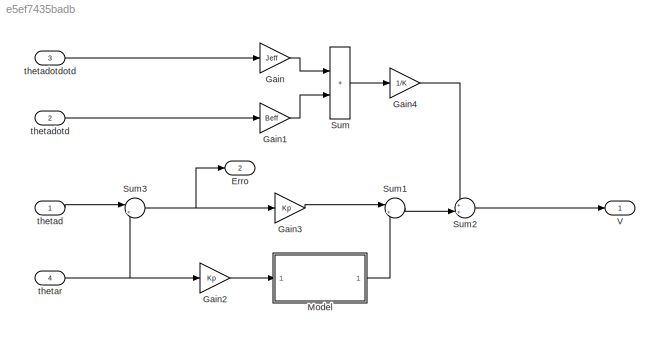
MODEL slx_e5ef7435badb
KIND model
CONFIG AbsTol = auto
CONFIG EnableMultiTasking = off
CONFIG FixedStep = auto
CONFIG MaxStep = auto
CONFIG MinStep = auto
CONFIG RelTol = 1e-3
CONFIG SampleTimeConstraint = Unconstrained
CONFIG SolverName = VariableStepAuto
CONFIG StartTime = 0.0
CONFIG StopTime = 10.0
BLOCK [Outport] Erro
  Port = 2
  PortDimensions = 3
BLOCK [Gain] Gain
  Gain = Jeff
BLOCK [Gain] Gain1
  Gain = Beff
BLOCK [Gain] Gain2
  Gain = Kp
BLOCK [Gain] Gain3
  Gain = Kp
BLOCK [Gain] Gain4
  Gain = 1/K
BLOCK [ModelReference] Model
  ModelNameDialog = transf2.slx
  ModelReferenceVersion = 1.2
  Ports = [1, 1]
BLOCK [Sum] Sum
  IconShape = rectangular
  Inputs = |+|||+
  Ports = [2, 1]
BLOCK [Sum] Sum1
  Inputs = |++
  Ports = [2, 1]
BLOCK [Sum] Sum2
  Inputs = ++|
  Ports = [2, 1]
BLOCK [Sum] Sum3
  Inputs = |+-
  Ports = [2, 1]
BLOCK [Outport] V
  PortDimensions = 3
BLOCK [Inport] thetad
  PortDimensions = 3
BLOCK [Inport] thetadotd
  Port = 2
  PortDimensions = 3
BLOCK [Inport] thetadotdotd
  Port = 3
  PortDimensions = 3
BLOCK [Inport] thetar
  Port = 4
  PortDimensions = 3
LINE Gain1:1 -> Sum:2
LINE Gain2:1 -> Model:1
LINE Gain3:1 -> Sum1:1
LINE Gain4:1 -> Sum2:1
LINE Gain:1 -> Sum:1
LINE Model:1 -> Sum1:2
LINE Sum1:1 -> Sum2:2
LINE Sum2:1 -> V:1
NET Sum3:1 -> Erro:1, Gain3:1
LINE Sum:1 -> Gain4:1
LINE thetad:1 -> Sum3:1
LINE thetadotd:1 -> Gain1:1
LINE thetadotdotd:1 -> Gain:1
NET thetar:1 -> Gain2:1, Sum3:2
note: NET lines group one-source signal fan-out (src -> all destinations, sorted); 1:1 wires keep LINE
